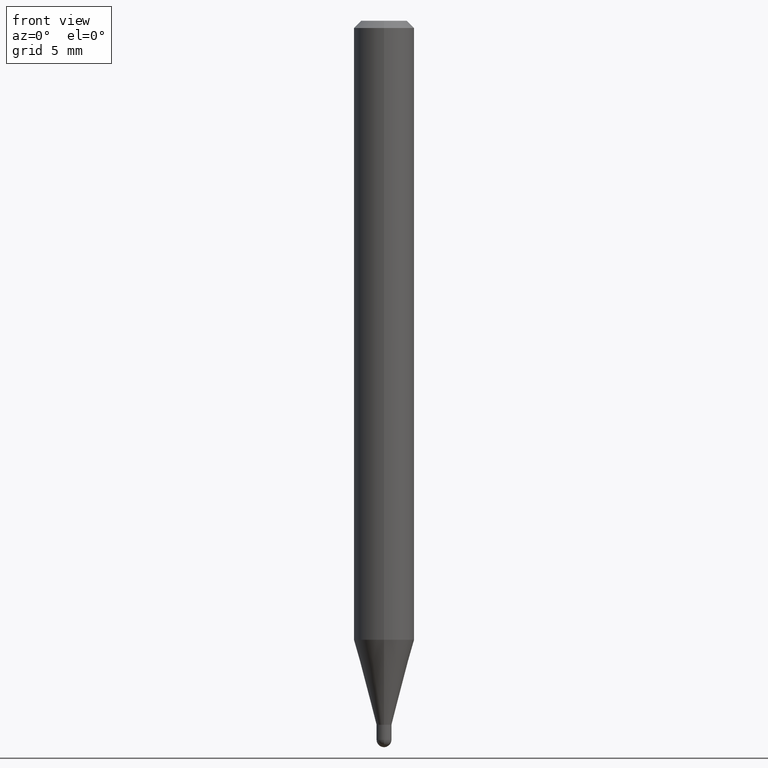
[diagram: clean part render]
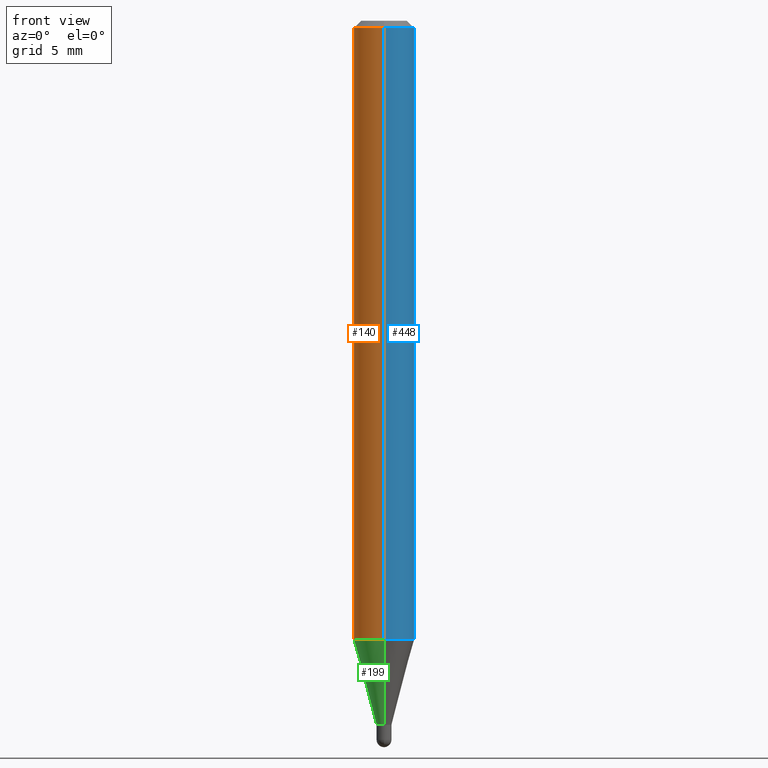
[diagram: same view with three faces highlighted in distinct colors, each labeled with its STEP entity id]
A machine part, front view with three faces highlighted in distinct colors.
Their STEP definitions:

[orange] entity #140 — the highlighted cylindrical surface (edge-blend (fillet) strip) has radius 1.5875 mm, axis along (-0, 0, 1).
#16 = DIRECTION ( 'NONE',  ( -2.445464718672532152E-29, 3.491487192393841779E-15, 1.000000000000000000 ) ) ;
#24 = ORIENTED_EDGE ( 'NONE', *, *, #348, .T. ) ;
#54 = EDGE_CURVE ( 'NONE', #282, #144, #470, .T. ) ;
#80 = CIRCLE ( 'NONE', #152, 0.06250000000000000000 ) ;
#92 = ORIENTED_EDGE ( 'NONE', *, *, #264, .T. ) ;
#99 = VECTOR ( 'NONE', #466, 39.37007874015748143 ) ;
#112 = AXIS2_PLACEMENT_3D ( 'NONE', #257, #212, #288 ) ;
#140 = ADVANCED_FACE ( 'NONE', ( #443 ), #169, .T. ) ;
#144 = VERTEX_POINT ( 'NONE', #171 ) ;
#152 = AXIS2_PLACEMENT_3D ( 'NONE', #420, #382, #289 ) ;
#169 = CYLINDRICAL_SURFACE ( 'NONE', #112, 0.06250000000000000000 ) ;
#170 = CARTESIAN_POINT ( 'NONE',  ( 4.440892098500935790E-16, 0.06249999999999551747, -1.278093612044269411 ) ) ;
#171 = CARTESIAN_POINT ( 'NONE',  ( 4.440892098500940720E-16, 0.06249999999999995143, -0.01500000000000028394 ) ) ;
#172 = DIRECTION ( 'NONE',  ( -6.982962677686265922E-15, -1.000000000000000000, 4.370956789862821150E-15 ) ) ;
#182 = CARTESIAN_POINT ( 'NONE',  ( -4.364351673553916201E-16, -0.06250000000000000000, 2.182179495246151112E-16 ) ) ;
#185 = DIRECTION ( 'NONE',  ( -2.445464718672532152E-29, 3.491487192393841779E-15, 1.000000000000000000 ) ) ;
#211 = ORIENTED_EDGE ( 'NONE', *, *, #54, .F. ) ;
#212 = DIRECTION ( 'NONE',  ( -2.445464718672532152E-29, 3.491487192393841779E-15, 1.000000000000000000 ) ) ;
#217 = CIRCLE ( 'NONE', #503, 0.06250000000000000000 ) ;
#242 = ORIENTED_EDGE ( 'NONE', *, *, #258, .F. ) ;
#251 = VECTOR ( 'NONE', #185, 39.37007874015748143 ) ;
#257 = CARTESIAN_POINT ( 'NONE',  ( 0.000000000000000000, 0.000000000000000000, 0.000000000000000000 ) ) ;
#258 = EDGE_CURVE ( 'NONE', #144, #475, #80, .T. ) ;
#264 = EDGE_CURVE ( 'NONE', #282, #334, #217, .T. ) ;
#282 = VERTEX_POINT ( 'NONE', #170 ) ;
#288 = DIRECTION ( 'NONE',  ( -6.982962677686265922E-15, -1.000000000000000000, 3.491487192393841779E-15 ) ) ;
#289 = DIRECTION ( 'NONE',  ( -6.982962677686265922E-15, -1.000000000000000000, 3.483106191921935554E-15 ) ) ;
#303 = EDGE_LOOP ( 'NONE', ( #211, #92, #24, #242 ) ) ;
#309 = CARTESIAN_POINT ( 'NONE',  ( 4.440892098500625669E-16, 0.06250000000000000000, -2.182179495246151112E-16 ) ) ;
#334 = VERTEX_POINT ( 'NONE', #426 ) ;
#348 = EDGE_CURVE ( 'NONE', #334, #475, #415, .T. ) ;
#369 = CARTESIAN_POINT ( 'NONE',  ( 3.125532835414998738E-29, -4.462447477132949161E-15, -1.278093612044269189 ) ) ;
#382 = DIRECTION ( 'NONE',  ( -2.445464718672532152E-29, 3.491487192393841779E-15, 1.000000000000000000 ) ) ;
#415 = LINE ( 'NONE', #182, #251 ) ;
#420 = CARTESIAN_POINT ( 'NONE',  ( 3.668197078008814466E-31, -5.237230788590785669E-17, -0.01500000000000006710 ) ) ;
#423 = CARTESIAN_POINT ( 'NONE',  ( -4.364351673553912750E-16, -0.06250000000000005551, -0.01499999999999984852 ) ) ;
#426 = CARTESIAN_POINT ( 'NONE',  ( -4.364351673553605094E-16, -0.06250000000000448253, -1.278093612044268745 ) ) ;
#443 = FACE_OUTER_BOUND ( 'NONE', #303, .T. ) ;
#466 = DIRECTION ( 'NONE',  ( -2.445464718672532152E-29, 3.491487192393841779E-15, 1.000000000000000000 ) ) ;
#470 = LINE ( 'NONE', #309, #99 ) ;
#475 = VERTEX_POINT ( 'NONE', #423 ) ;
#503 = AXIS2_PLACEMENT_3D ( 'NONE', #369, #16, #172 ) ;

[blue] entity #448 — the highlighted cylindrical surface (edge-blend (fillet) strip) has radius 1.5875 mm, axis along (-0, 0, 1).
#15 = EDGE_LOOP ( 'NONE', ( #405, #86, #223, #133 ) ) ;
#37 = CARTESIAN_POINT ( 'NONE',  ( 0.000000000000000000, 0.000000000000000000, 0.000000000000000000 ) ) ;
#54 = EDGE_CURVE ( 'NONE', #282, #144, #470, .T. ) ;
#73 = DIRECTION ( 'NONE',  ( -2.445464718672532152E-29, 3.491487192393841779E-15, 1.000000000000000000 ) ) ;
#86 = ORIENTED_EDGE ( 'NONE', *, *, #54, .T. ) ;
#99 = VECTOR ( 'NONE', #466, 39.37007874015748143 ) ;
#133 = ORIENTED_EDGE ( 'NONE', *, *, #348, .F. ) ;
#135 = CARTESIAN_POINT ( 'NONE',  ( 3.125532835414998738E-29, -4.462447477132949161E-15, -1.278093612044269189 ) ) ;
#136 = CARTESIAN_POINT ( 'NONE',  ( 3.668197078008814466E-31, -5.237230788590785669E-17, -0.01500000000000006710 ) ) ;
#144 = VERTEX_POINT ( 'NONE', #171 ) ;
#153 = EDGE_CURVE ( 'NONE', #334, #282, #299, .T. ) ;
#170 = CARTESIAN_POINT ( 'NONE',  ( 4.440892098500935790E-16, 0.06249999999999551747, -1.278093612044269411 ) ) ;
#171 = CARTESIAN_POINT ( 'NONE',  ( 4.440892098500940720E-16, 0.06249999999999995143, -0.01500000000000028394 ) ) ;
#182 = CARTESIAN_POINT ( 'NONE',  ( -4.364351673553916201E-16, -0.06250000000000000000, 2.182179495246151112E-16 ) ) ;
#185 = DIRECTION ( 'NONE',  ( -2.445464718672532152E-29, 3.491487192393841779E-15, 1.000000000000000000 ) ) ;
#187 = AXIS2_PLACEMENT_3D ( 'NONE', #37, #73, #274 ) ;
#220 = DIRECTION ( 'NONE',  ( -6.982962677686265922E-15, -1.000000000000000000, 3.483106191921935554E-15 ) ) ;
#223 = ORIENTED_EDGE ( 'NONE', *, *, #358, .F. ) ;
#251 = VECTOR ( 'NONE', #185, 39.37007874015748143 ) ;
#274 = DIRECTION ( 'NONE',  ( -6.982962677686265922E-15, -1.000000000000000000, 3.491487192393841779E-15 ) ) ;
#276 = AXIS2_PLACEMENT_3D ( 'NONE', #136, #372, #220 ) ;
#282 = VERTEX_POINT ( 'NONE', #170 ) ;
#299 = CIRCLE ( 'NONE', #485, 0.06250000000000000000 ) ;
#307 = CIRCLE ( 'NONE', #276, 0.06250000000000000000 ) ;
#309 = CARTESIAN_POINT ( 'NONE',  ( 4.440892098500625669E-16, 0.06250000000000000000, -2.182179495246151112E-16 ) ) ;
#334 = VERTEX_POINT ( 'NONE', #426 ) ;
#348 = EDGE_CURVE ( 'NONE', #334, #475, #415, .T. ) ;
#358 = EDGE_CURVE ( 'NONE', #475, #144, #307, .T. ) ;
#372 = DIRECTION ( 'NONE',  ( -2.445464718672532152E-29, 3.491487192393841779E-15, 1.000000000000000000 ) ) ;
#391 = CYLINDRICAL_SURFACE ( 'NONE', #187, 0.06250000000000000000 ) ;
#405 = ORIENTED_EDGE ( 'NONE', *, *, #153, .T. ) ;
#415 = LINE ( 'NONE', #182, #251 ) ;
#423 = CARTESIAN_POINT ( 'NONE',  ( -4.364351673553912750E-16, -0.06250000000000005551, -0.01499999999999984852 ) ) ;
#426 = CARTESIAN_POINT ( 'NONE',  ( -4.364351673553605094E-16, -0.06250000000000448253, -1.278093612044268745 ) ) ;
#448 = ADVANCED_FACE ( 'NONE', ( #467 ), #391, .T. ) ;
#455 = DIRECTION ( 'NONE',  ( -6.982962677686265922E-15, -1.000000000000000000, 4.370956789862821150E-15 ) ) ;
#462 = DIRECTION ( 'NONE',  ( -2.445464718672532152E-29, 3.491487192393841779E-15, 1.000000000000000000 ) ) ;
#466 = DIRECTION ( 'NONE',  ( -2.445464718672532152E-29, 3.491487192393841779E-15, 1.000000000000000000 ) ) ;
#467 = FACE_OUTER_BOUND ( 'NONE', #15, .T. ) ;
#470 = LINE ( 'NONE', #309, #99 ) ;
#475 = VERTEX_POINT ( 'NONE', #423 ) ;
#485 = AXIS2_PLACEMENT_3D ( 'NONE', #135, #462, #455 ) ;

[green] entity #199 — the highlighted conical surface has half-angle 15 deg.
#16 = DIRECTION ( 'NONE',  ( -2.445464718672532152E-29, 3.491487192393841779E-15, 1.000000000000000000 ) ) ;
#20 = AXIS2_PLACEMENT_3D ( 'NONE', #238, #298, #141 ) ;
#27 = CARTESIAN_POINT ( 'NONE',  ( 1.101341240428524689E-16, 0.01549999999999512185, -1.453500000000000236 ) ) ;
#44 = DIRECTION ( 'NONE',  ( -2.445464718672532152E-29, 3.491487192393841779E-15, 1.000000000000000000 ) ) ;
#118 = EDGE_CURVE ( 'NONE', #295, #167, #353, .T. ) ;
#141 = DIRECTION ( 'NONE',  ( -6.982962677686266711E-15, -1.000000000000000000, 0.000000000000000000 ) ) ;
#167 = VERTEX_POINT ( 'NONE', #397 ) ;
#170 = CARTESIAN_POINT ( 'NONE',  ( 4.440892098500935790E-16, 0.06249999999999551747, -1.278093612044269411 ) ) ;
#172 = DIRECTION ( 'NONE',  ( -6.982962677686265922E-15, -1.000000000000000000, 4.370956789862821150E-15 ) ) ;
#180 = EDGE_CURVE ( 'NONE', #167, #334, #431, .T. ) ;
#186 = ORIENTED_EDGE ( 'NONE', *, *, #180, .T. ) ;
#197 = DIRECTION ( 'NONE',  ( -1.807323732225375893E-15, -0.2588190451025247363, 0.9659258262890673130 ) ) ;
#199 = ADVANCED_FACE ( 'NONE', ( #410 ), #239, .T. ) ;
#204 = ORIENTED_EDGE ( 'NONE', *, *, #118, .T. ) ;
#206 = DIRECTION ( 'NONE',  ( -6.982962677686266711E-15, -1.000000000000000000, 0.000000000000000000 ) ) ;
#217 = CIRCLE ( 'NONE', #503, 0.06250000000000000000 ) ;
#236 = CARTESIAN_POINT ( 'NONE',  ( -1.082359215041029611E-16, -0.01550000000000527345, -1.453500000000000236 ) ) ;
#238 = CARTESIAN_POINT ( 'NONE',  ( 3.554482968590526070E-29, -5.074876634144450327E-15, -1.453500000000000236 ) ) ;
#239 = CONICAL_SURFACE ( 'NONE', #20, 0.01550000000000019765, 0.2617993877991570684 ) ;
#240 = VECTOR ( 'NONE', #342, 39.37007874015748854 ) ;
#259 = ORIENTED_EDGE ( 'NONE', *, *, #488, .F. ) ;
#260 = CARTESIAN_POINT ( 'NONE',  ( 2.771116669464732889E-16, 0.01549999999999512185, -1.453500000000000236 ) ) ;
#264 = EDGE_CURVE ( 'NONE', #282, #334, #217, .T. ) ;
#282 = VERTEX_POINT ( 'NONE', #170 ) ;
#287 = CARTESIAN_POINT ( 'NONE',  ( 3.554482968590526070E-29, -5.074876634144450327E-15, -1.453500000000000236 ) ) ;
#295 = VERTEX_POINT ( 'NONE', #260 ) ;
#298 = DIRECTION ( 'NONE',  ( -2.445464718672532152E-29, 3.491487192393841779E-15, 1.000000000000000000 ) ) ;
#334 = VERTEX_POINT ( 'NONE', #426 ) ;
#342 = DIRECTION ( 'NONE',  ( 1.839019923739646464E-15, 0.2588190451025315086, 0.9659258262890653146 ) ) ;
#353 = CIRCLE ( 'NONE', #384, 0.01550000000000019765 ) ;
#369 = CARTESIAN_POINT ( 'NONE',  ( 3.125532835414998738E-29, -4.462447477132949161E-15, -1.278093612044269189 ) ) ;
#381 = LINE ( 'NONE', #27, #240 ) ;
#384 = AXIS2_PLACEMENT_3D ( 'NONE', #287, #44, #206 ) ;
#397 = CARTESIAN_POINT ( 'NONE',  ( -1.082359215041029611E-16, -0.01550000000000527345, -1.453500000000000236 ) ) ;
#409 = ORIENTED_EDGE ( 'NONE', *, *, #264, .F. ) ;
#410 = FACE_OUTER_BOUND ( 'NONE', #450, .T. ) ;
#426 = CARTESIAN_POINT ( 'NONE',  ( -4.364351673553605094E-16, -0.06250000000000448253, -1.278093612044268745 ) ) ;
#431 = LINE ( 'NONE', #236, #461 ) ;
#450 = EDGE_LOOP ( 'NONE', ( #259, #204, #186, #409 ) ) ;
#461 = VECTOR ( 'NONE', #197, 39.37007874015748854 ) ;
#488 = EDGE_CURVE ( 'NONE', #295, #282, #381, .T. ) ;
#503 = AXIS2_PLACEMENT_3D ( 'NONE', #369, #16, #172 ) ;